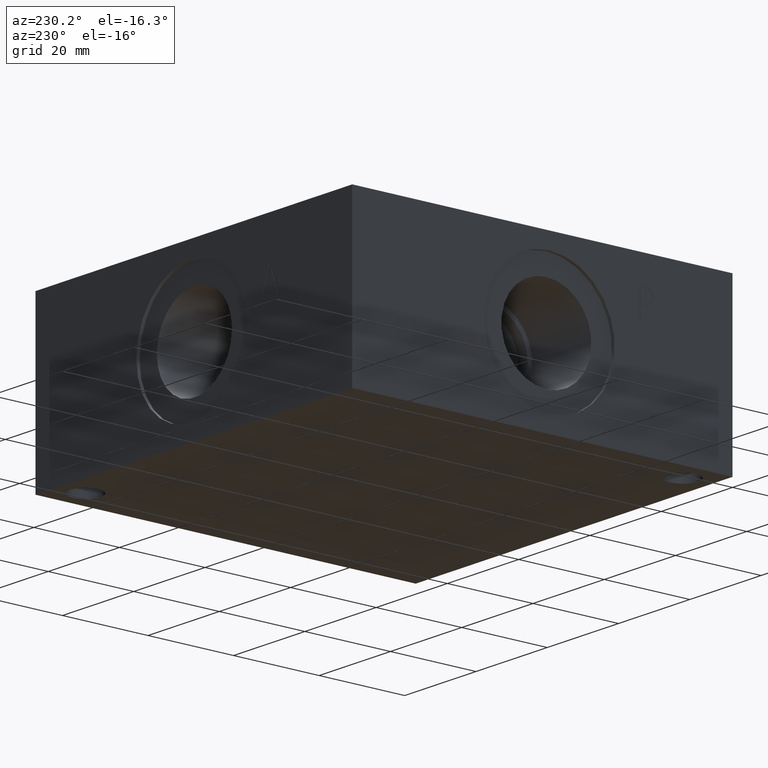
[diagram: clean part render]
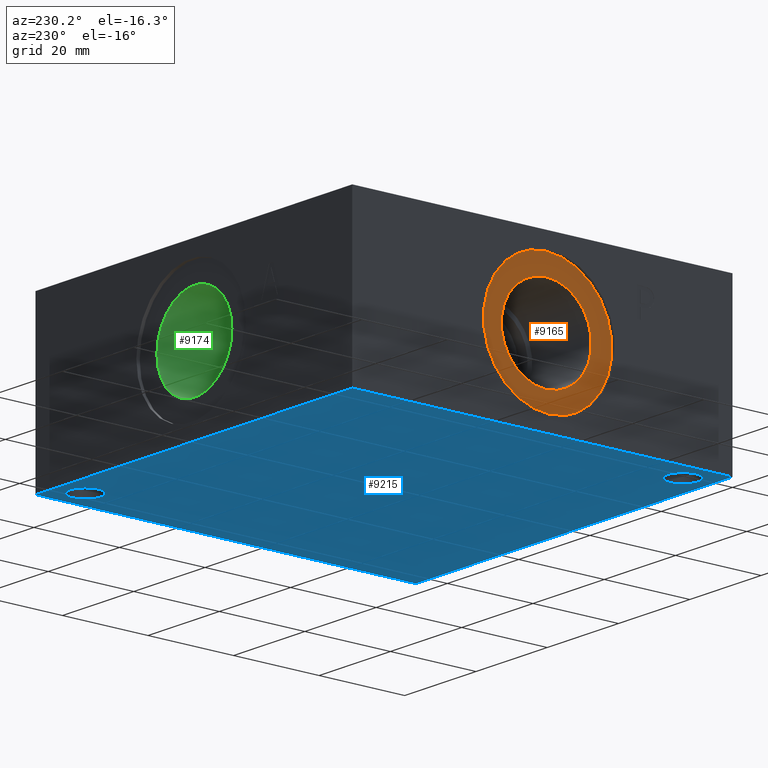
[diagram: same view with three faces highlighted in distinct colors, each labeled with its STEP entity id]
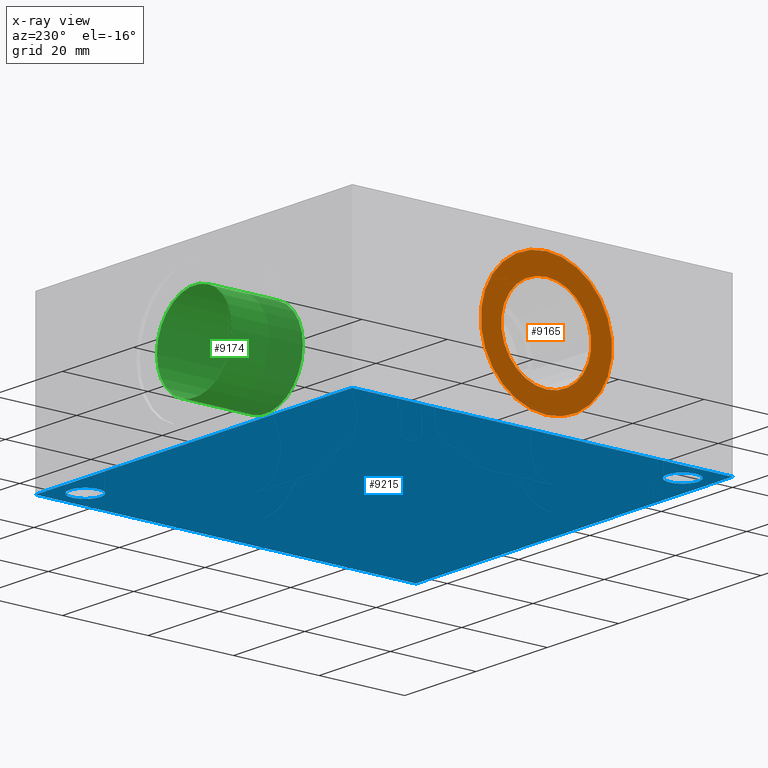
[diagram: x-ray of the same camera — body ghosted, the three highlighted faces saturated]
A machine part, auxiliary view with three faces highlighted in distinct colors.
The next image is the same camera in x-ray (body ghosted, the three faces saturated) — at least one of them is partly hidden behind the body in this view.
Their STEP definitions:

[orange] entity #9165 — the highlighted planar face has unit normal (1, 0, 0).
#103=CIRCLE('',#9544,15.3416);
#104=CIRCLE('',#9545,15.3416);
#105=CIRCLE('',#9547,10.5283);
#106=CIRCLE('',#9548,10.5283);
#228=FACE_BOUND('',#1457,.T.);
#513=PLANE('',#9546);
#946=FACE_OUTER_BOUND('',#1456,.T.);
#1456=EDGE_LOOP('',(#7944,#7945));
#1457=EDGE_LOOP('',(#7946,#7947));
#4318=VERTEX_POINT('',#15627);
#4319=VERTEX_POINT('',#15629);
#4320=VERTEX_POINT('',#15633);
#4321=VERTEX_POINT('',#15634);
#5561=EDGE_CURVE('',#4318,#4319,#103,.T.);
#5562=EDGE_CURVE('',#4319,#4318,#104,.T.);
#5563=EDGE_CURVE('',#4320,#4321,#105,.T.);
#5564=EDGE_CURVE('',#4321,#4320,#106,.T.);
#7944=ORIENTED_EDGE('',*,*,#5562,.F.);
#7945=ORIENTED_EDGE('',*,*,#5561,.F.);
#7946=ORIENTED_EDGE('',*,*,#5563,.T.);
#7947=ORIENTED_EDGE('',*,*,#5564,.T.);
#9165=ADVANCED_FACE('',(#946,#228),#513,.F.);
#9544=AXIS2_PLACEMENT_3D('',#15630,#11135,#11136);
#9545=AXIS2_PLACEMENT_3D('',#15631,#11137,#11138);
#9546=AXIS2_PLACEMENT_3D('',#15632,#11139,#11140);
#9547=AXIS2_PLACEMENT_3D('',#15635,#11141,#11142);
#9548=AXIS2_PLACEMENT_3D('',#15636,#11143,#11144);
#11135=DIRECTION('center_axis',(1.,0.,0.));
#11136=DIRECTION('ref_axis',(0.,0.,-1.));
#11137=DIRECTION('center_axis',(1.,0.,0.));
#11138=DIRECTION('ref_axis',(0.,0.,-1.));
#11139=DIRECTION('center_axis',(1.,0.,0.));
#11140=DIRECTION('ref_axis',(0.,0.,-1.));
#11141=DIRECTION('center_axis',(1.,0.,0.));
#11142=DIRECTION('ref_axis',(0.,0.,-1.));
#11143=DIRECTION('center_axis',(1.,0.,0.));
#11144=DIRECTION('ref_axis',(0.,0.,-1.));
#15627=CARTESIAN_POINT('',(0.7874,42.8752,3.7084));
#15629=CARTESIAN_POINT('',(0.7874,42.8752,34.3916));
#15630=CARTESIAN_POINT('Origin',(0.7874,42.8752,19.05));
#15631=CARTESIAN_POINT('Origin',(0.7874,42.8752,19.05));
#15632=CARTESIAN_POINT('Origin',(0.7874,42.8752,29.5783));
#15633=CARTESIAN_POINT('',(0.7874,42.8752,29.5783));
#15634=CARTESIAN_POINT('',(0.787400000000001,42.8752,8.5217));
#15635=CARTESIAN_POINT('Origin',(0.7874,42.8752,19.05));
#15636=CARTESIAN_POINT('Origin',(0.7874,42.8752,19.05));

[blue] entity #9215 — the highlighted planar face has unit normal (0, 0, 1).
#131=CIRCLE('',#9588,3.5814);
#137=CIRCLE('',#9597,3.5814);
#251=FACE_BOUND('',#1530,.T.);
#252=FACE_BOUND('',#1531,.T.);
#528=PLANE('',#9677);
#996=FACE_OUTER_BOUND('',#1529,.T.);
#1529=EDGE_LOOP('',(#8215,#8216,#8217,#8218));
#1530=EDGE_LOOP('',(#8219));
#1531=EDGE_LOOP('',(#8220));
#1824=LINE('',#13941,#2688);
#2305=LINE('',#15440,#3169);
#2341=LINE('',#15517,#3205);
#2394=LINE('',#15887,#3258);
#2688=VECTOR('',#10112,10.);
#3169=VECTOR('',#10943,10.);
#3205=VECTOR('',#11009,10.);
#3258=VECTOR('',#11432,10.);
#3888=VERTEX_POINT('',#13939);
#3889=VERTEX_POINT('',#13940);
#4252=VERTEX_POINT('',#15439);
#4278=VERTEX_POINT('',#15516);
#4347=VERTEX_POINT('',#15711);
#4353=VERTEX_POINT('',#15728);
#4927=EDGE_CURVE('',#3888,#3889,#1824,.T.);
#5470=EDGE_CURVE('',#4252,#3888,#2305,.T.);
#5508=EDGE_CURVE('',#4278,#4252,#2341,.T.);
#5600=EDGE_CURVE('',#4347,#4347,#131,.T.);
#5608=EDGE_CURVE('',#4353,#4353,#137,.T.);
#5679=EDGE_CURVE('',#3889,#4278,#2394,.T.);
#8215=ORIENTED_EDGE('',*,*,#4927,.F.);
#8216=ORIENTED_EDGE('',*,*,#5470,.F.);
#8217=ORIENTED_EDGE('',*,*,#5508,.F.);
#8218=ORIENTED_EDGE('',*,*,#5679,.F.);
#8219=ORIENTED_EDGE('',*,*,#5600,.T.);
#8220=ORIENTED_EDGE('',*,*,#5608,.T.);
#9215=ADVANCED_FACE('',(#996,#251,#252),#528,.F.);
#9588=AXIS2_PLACEMENT_3D('',#15713,#11234,#11235);
#9597=AXIS2_PLACEMENT_3D('',#15730,#11254,#11255);
#9677=AXIS2_PLACEMENT_3D('',#15891,#11438,#11439);
#10112=DIRECTION('',(1.,0.,0.));
#10943=DIRECTION('',(0.,-1.,0.));
#11009=DIRECTION('',(-1.,0.,0.));
#11234=DIRECTION('center_axis',(0.,0.,1.));
#11235=DIRECTION('ref_axis',(1.,0.,0.));
#11254=DIRECTION('center_axis',(0.,0.,1.));
#11255=DIRECTION('ref_axis',(1.,0.,0.));
#11432=DIRECTION('',(0.,1.,0.));
#11438=DIRECTION('center_axis',(0.,0.,1.));
#11439=DIRECTION('ref_axis',(1.,0.,0.));
#13939=CARTESIAN_POINT('',(0.,0.,0.));
#13940=CARTESIAN_POINT('',(88.9,0.,0.));
#13941=CARTESIAN_POINT('',(0.,0.,0.));
#15439=CARTESIAN_POINT('',(0.,88.9,0.));
#15440=CARTESIAN_POINT('',(0.,88.9,0.));
#15516=CARTESIAN_POINT('',(88.9,88.9,0.));
#15517=CARTESIAN_POINT('',(88.9,88.9,0.));
#15711=CARTESIAN_POINT('',(78.9686,82.55,0.));
#15713=CARTESIAN_POINT('Origin',(82.55,82.55,0.));
#15728=CARTESIAN_POINT('',(2.7686,6.35,0.));
#15730=CARTESIAN_POINT('Origin',(6.35,6.35,0.));
#15887=CARTESIAN_POINT('',(88.9,0.,0.));
#15891=CARTESIAN_POINT('Origin',(44.45,44.45,0.));

[green] entity #9174 — the highlighted cylindrical surface (bore or boss wall) has radius 10.5283 mm, axis along (0, -1, 0).
#28=CYLINDRICAL_SURFACE('',#9570,10.5283);
#118=CIRCLE('',#9568,10.5283);
#119=CIRCLE('',#9569,10.5283);
#120=CIRCLE('',#9571,10.5283);
#121=CIRCLE('',#9572,10.5283);
#955=FACE_OUTER_BOUND('',#1468,.T.);
#1468=EDGE_LOOP('',(#7989,#7990,#7991,#7992,#7993,#7994));
#2365=LINE('',#15680,#3229);
#3229=VECTOR('',#11195,10.5283);
#4334=VERTEX_POINT('',#15674);
#4335=VERTEX_POINT('',#15675);
#4336=VERTEX_POINT('',#15679);
#4337=VERTEX_POINT('',#15681);
#5582=EDGE_CURVE('',#4334,#4335,#118,.T.);
#5583=EDGE_CURVE('',#4335,#4334,#119,.T.);
#5584=EDGE_CURVE('',#4335,#4336,#2365,.T.);
#5585=EDGE_CURVE('',#4336,#4337,#120,.T.);
#5586=EDGE_CURVE('',#4337,#4336,#121,.T.);
#7989=ORIENTED_EDGE('',*,*,#5582,.F.);
#7990=ORIENTED_EDGE('',*,*,#5583,.F.);
#7991=ORIENTED_EDGE('',*,*,#5584,.T.);
#7992=ORIENTED_EDGE('',*,*,#5585,.T.);
#7993=ORIENTED_EDGE('',*,*,#5586,.T.);
#7994=ORIENTED_EDGE('',*,*,#5584,.F.);
#9174=ADVANCED_FACE('',(#955),#28,.F.);
#9568=AXIS2_PLACEMENT_3D('',#15676,#11189,#11190);
#9569=AXIS2_PLACEMENT_3D('',#15677,#11191,#11192);
#9570=AXIS2_PLACEMENT_3D('',#15678,#11193,#11194);
#9571=AXIS2_PLACEMENT_3D('',#15682,#11196,#11197);
#9572=AXIS2_PLACEMENT_3D('',#15683,#11198,#11199);
#11189=DIRECTION('center_axis',(0.,-1.,0.));
#11190=DIRECTION('ref_axis',(1.,0.,0.));
#11191=DIRECTION('center_axis',(0.,-1.,0.));
#11192=DIRECTION('ref_axis',(1.,0.,0.));
#11193=DIRECTION('center_axis',(0.,-1.,0.));
#11194=DIRECTION('ref_axis',(1.,0.,0.));
#11195=DIRECTION('',(0.,-1.,0.));
#11196=DIRECTION('center_axis',(0.,-1.,0.));
#11197=DIRECTION('ref_axis',(1.,0.,0.));
#11198=DIRECTION('center_axis',(0.,-1.,0.));
#11199=DIRECTION('ref_axis',(1.,0.,0.));
#15674=CARTESIAN_POINT('',(55.7657,88.1126,19.05));
#15675=CARTESIAN_POINT('',(34.7091,88.1126,19.05));
#15676=CARTESIAN_POINT('Origin',(45.2374,88.1126,19.05));
#15677=CARTESIAN_POINT('Origin',(45.2374,88.1126,19.05));
#15678=CARTESIAN_POINT('Origin',(45.2374,79.8195,19.05));
#15679=CARTESIAN_POINT('',(34.7091,71.5264,19.05));
#15680=CARTESIAN_POINT('',(34.7091,79.8195,19.05));
#15681=CARTESIAN_POINT('',(55.7657,71.5264,19.05));
#15682=CARTESIAN_POINT('Origin',(45.2374,71.5264,19.05));
#15683=CARTESIAN_POINT('Origin',(45.2374,71.5264,19.05));